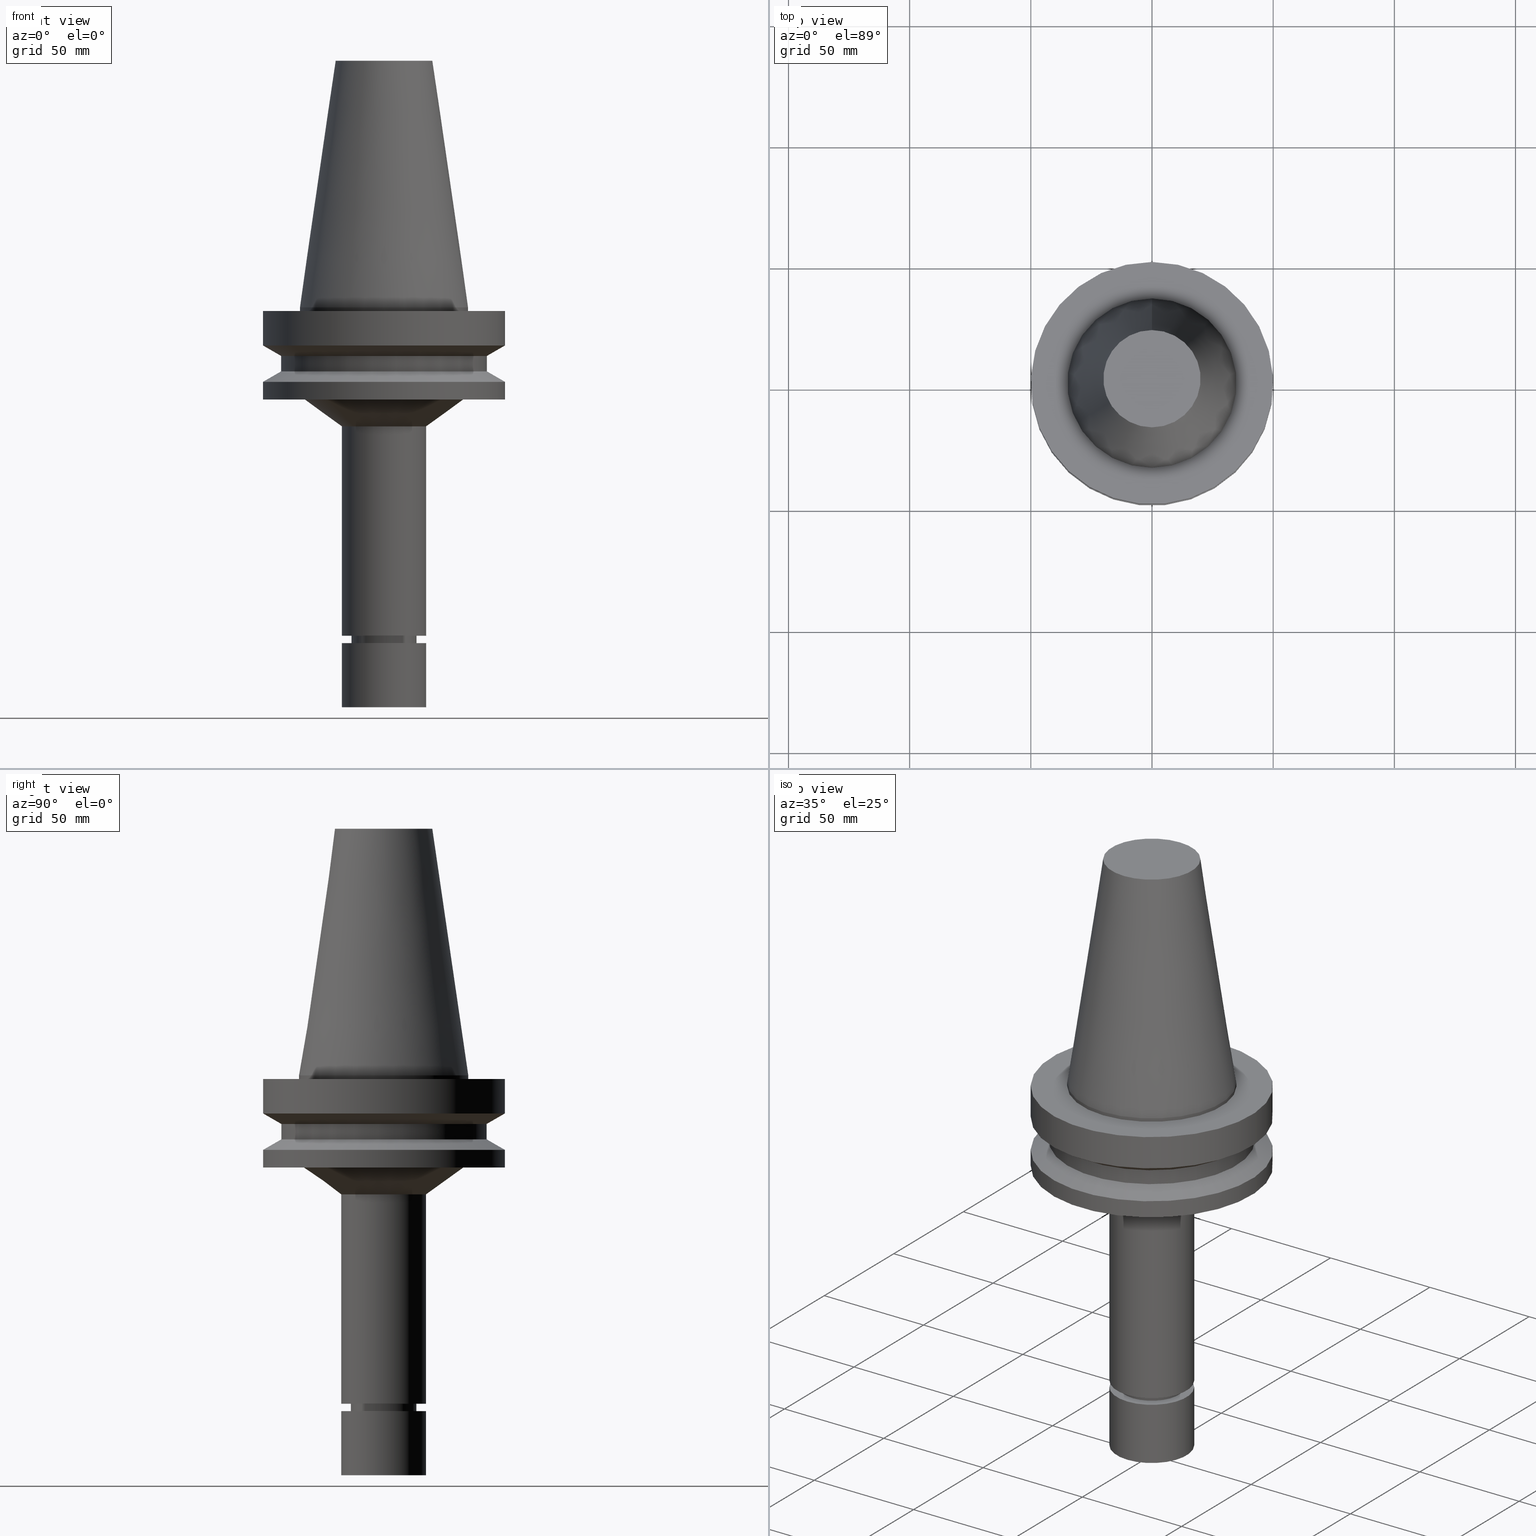
[diagram: canonical four-view strip — front | top / right | iso, engineering-drawing reading convention]
A machine part, canonical four-view strip (front | top / right | iso — engineering-drawing reading convention). The complete STEP part file that produces these views, byte-faithful:
ISO-10303-21;
HEADER;
FILE_DESCRIPTION((''),'1');
FILE_NAME('V:/90_\X2\53D65F9730C730FC30BF\X0\/00_\X2\6DE18DEF30C730FC30BF\X0\/ALL/BBT-BKUS\X2\FF76FF80FF9BFF78FF9E752852A05DE556F3\X0\201801/BBT50-MEGAER/BBT50-MEGAER20-165NL.stp','2018-02-02T08:02:47',(''),(''),'Spatial Interop R21 SP3','Kubotek KeyCreator 2011 V10.0.2 (22737)',' ');
FILE_SCHEMA(('automotive_design'));
ENDSEC;
DATA;
#1=MECHANICAL_DESIGN_GEOMETRIC_PRESENTATION_REPRESENTATION(' ',(#14,#15,#16,#17,#18,#19,#20,#21,#22,#23,#24,#25,#26,#27,#28,#29,#30,#31,#32,#33,#34,#35,#36,#37,#38,#39,#40,#41,#42,#43,#44,#45,#46,#47,#48,#49,#50,#51,#52,#53,#54,#55),#10);
#2=PRODUCT_DEFINITION_CONTEXT('',#56,'design');
#3=APPLICATION_PROTOCOL_DEFINITION('INTERNATIONAL STANDARD','automotive_design',1994,#56);
#4=PRODUCT_CATEGORY_RELATIONSHIP('NONE','NONE',#57,#58);
#5=SHAPE_DEFINITION_REPRESENTATION(#59,#60);
#6=PRODUCT_DEFINITION_CONTEXT('',#61,'design');
#7=APPLICATION_PROTOCOL_DEFINITION('INTERNATIONAL STANDARD','automotive_design',1994,#61);
#8=PRODUCT_CATEGORY_RELATIONSHIP('NONE','NONE',#62,#63);
#9=SHAPE_DEFINITION_REPRESENTATION(#64,#65);
#10= (GEOMETRIC_REPRESENTATION_CONTEXT(3)GLOBAL_UNCERTAINTY_ASSIGNED_CONTEXT((#68))GLOBAL_UNIT_ASSIGNED_CONTEXT((#70,#71,#72))REPRESENTATION_CONTEXT('NONE','WORKSPACE'));
#14=STYLED_ITEM('',(#74,#75),#76);
#15=STYLED_ITEM('',(#77,#78),#79);
#16=STYLED_ITEM('',(#80),#81);
#17=STYLED_ITEM('',(#82),#83);
#18=STYLED_ITEM('',(#84,#85),#86);
#19=STYLED_ITEM('',(#87,#88),#89);
#20=STYLED_ITEM('',(#90),#91);
#21=STYLED_ITEM('',(#92,#93),#94);
#22=STYLED_ITEM('',(#95),#96);
#23=STYLED_ITEM('',(#97),#98);
#24=STYLED_ITEM('',(#99,#100),#101);
#25=STYLED_ITEM('',(#102,#103),#104);
#26=STYLED_ITEM('',(#105),#106);
#27=STYLED_ITEM('',(#107,#108),#109);
#28=STYLED_ITEM('',(#110,#111),#112);
#29=STYLED_ITEM('',(#113),#114);
#30=STYLED_ITEM('',(#115),#116);
#31=STYLED_ITEM('',(#117),#118);
#32=STYLED_ITEM('',(#119),#120);
#33=STYLED_ITEM('',(#121,#122),#123);
#34=STYLED_ITEM('',(#124,#125),#126);
#35=STYLED_ITEM('',(#127,#128),#129);
#36=STYLED_ITEM('',(#130,#131),#132);
#37=STYLED_ITEM('',(#133),#134);
#38=STYLED_ITEM('',(#135),#136);
#39=STYLED_ITEM('',(#137),#138);
#40=STYLED_ITEM('',(#139),#140);
#41=STYLED_ITEM('',(#141,#142),#143);
#42=STYLED_ITEM('',(#144,#145),#146);
#43=STYLED_ITEM('',(#147),#148);
#44=STYLED_ITEM('',(#149,#150),#151);
#45=STYLED_ITEM('',(#152,#153),#154);
#46=STYLED_ITEM('',(#155,#156),#157);
#47=STYLED_ITEM('',(#158,#159),#160);
#48=STYLED_ITEM('',(#161,#162),#163);
#49=STYLED_ITEM('',(#164,#165),#166);
#50=STYLED_ITEM('',(#167),#168);
#51=STYLED_ITEM('',(#169),#170);
#52=STYLED_ITEM('',(#171,#172),#173);
#53=STYLED_ITEM('',(#174),#175);
#54=STYLED_ITEM('',(#176,#177),#178);
#55=STYLED_ITEM('',(#179),#180);
#56=APPLICATION_CONTEXT(' ');
#57=PRODUCT_CATEGORY('part','NONE');
#58=PRODUCT_RELATED_PRODUCT_CATEGORY('detail',' ',(#181));
#59=PRODUCT_DEFINITION_SHAPE('NONE','NONE',#182);
#60=ADVANCED_BREP_SHAPE_REPRESENTATION('Unnamed[1]',(#173,#183),#10);
#61=APPLICATION_CONTEXT(' ');
#62=PRODUCT_CATEGORY('part','NONE');
#63=PRODUCT_RELATED_PRODUCT_CATEGORY('detail',' ',(#184));
#64=PRODUCT_DEFINITION_SHAPE('NONE','NONE',#185);
#65=ADVANCED_BREP_SHAPE_REPRESENTATION('Unnamed[1]',(#101,#186),#10);
#68=UNCERTAINTY_MEASURE_WITH_UNIT(LENGTH_MEASURE(1.0E-006),#70,'','');
#70= (CONVERSION_BASED_UNIT('MILLIMETRE',#189)LENGTH_UNIT()NAMED_UNIT(#192));
#71= (NAMED_UNIT(#194)PLANE_ANGLE_UNIT()SI_UNIT($,.RADIAN.));
#72= (NAMED_UNIT(#194)SOLID_ANGLE_UNIT()SI_UNIT($,.STERADIAN.));
#74=PRESENTATION_STYLE_ASSIGNMENT((#200));
#75=PRESENTATION_STYLE_ASSIGNMENT((#201));
#76=ADVANCED_FACE('Unnamed[1]',(#202),#203,.T.);
#77=PRESENTATION_STYLE_ASSIGNMENT((#204));
#78=PRESENTATION_STYLE_ASSIGNMENT((#205));
#79=ADVANCED_FACE('Unnamed[1]',(#206,#207),#208,.T.);
#80=PRESENTATION_STYLE_ASSIGNMENT((#209));
#81=EDGE_CURVE('Unnamed[1]',#210,#210,#211,.T.);
#82=PRESENTATION_STYLE_ASSIGNMENT((#212));
#83=EDGE_CURVE('Unnamed[1]',#213,#213,#214,.T.);
#84=PRESENTATION_STYLE_ASSIGNMENT((#215));
#85=PRESENTATION_STYLE_ASSIGNMENT((#216));
#86=ADVANCED_FACE('Unnamed[1]',(#217,#218),#219,.T.);
#87=PRESENTATION_STYLE_ASSIGNMENT((#220));
#88=PRESENTATION_STYLE_ASSIGNMENT((#221));
#89=ADVANCED_FACE('Unnamed[1]',(#222,#223),#224,.T.);
#90=PRESENTATION_STYLE_ASSIGNMENT((#225));
#91=EDGE_CURVE('Unnamed[1]',#226,#226,#227,.T.);
#92=PRESENTATION_STYLE_ASSIGNMENT((#228));
#93=PRESENTATION_STYLE_ASSIGNMENT((#229));
#94=ADVANCED_FACE('Unnamed[1]',(#230,#231),#232,.T.);
#95=PRESENTATION_STYLE_ASSIGNMENT((#233));
#96=EDGE_CURVE('Unnamed[1]',#234,#234,#235,.T.);
#97=PRESENTATION_STYLE_ASSIGNMENT((#236));
#98=EDGE_CURVE('Unnamed[1]',#237,#237,#238,.T.);
#99=PRESENTATION_STYLE_ASSIGNMENT((#239));
#100=PRESENTATION_STYLE_ASSIGNMENT((#240));
#101=MANIFOLD_SOLID_BREP('Unnamed[1]',#241);
#102=PRESENTATION_STYLE_ASSIGNMENT((#242));
#103=PRESENTATION_STYLE_ASSIGNMENT((#243));
#104=ADVANCED_FACE('Unnamed[1]',(#244,#245),#246,.T.);
#105=PRESENTATION_STYLE_ASSIGNMENT((#247));
#106=EDGE_CURVE('Unnamed[1]',#248,#248,#249,.T.);
#107=PRESENTATION_STYLE_ASSIGNMENT((#250));
#108=PRESENTATION_STYLE_ASSIGNMENT((#251));
#109=ADVANCED_FACE('Unnamed[1]',(#252,#253),#254,.T.);
#110=PRESENTATION_STYLE_ASSIGNMENT((#255));
#111=PRESENTATION_STYLE_ASSIGNMENT((#256));
#112=ADVANCED_FACE('Unnamed[1]',(#257),#258,.T.);
#113=PRESENTATION_STYLE_ASSIGNMENT((#259));
#114=EDGE_CURVE('Unnamed[1]',#260,#260,#261,.T.);
#115=PRESENTATION_STYLE_ASSIGNMENT((#262));
#116=EDGE_CURVE('Unnamed[1]',#263,#263,#264,.T.);
#117=PRESENTATION_STYLE_ASSIGNMENT((#265));
#118=EDGE_CURVE('Unnamed[1]',#266,#266,#267,.T.);
#119=PRESENTATION_STYLE_ASSIGNMENT((#268));
#120=EDGE_CURVE('Unnamed[1]',#269,#269,#270,.T.);
#121=PRESENTATION_STYLE_ASSIGNMENT((#271));
#122=PRESENTATION_STYLE_ASSIGNMENT((#272));
#123=ADVANCED_FACE('Unnamed[1]',(#273,#274),#275,.T.);
#124=PRESENTATION_STYLE_ASSIGNMENT((#276));
#125=PRESENTATION_STYLE_ASSIGNMENT((#277));
#126=ADVANCED_FACE('Unnamed[1]',(#278,#279),#280,.T.);
#127=PRESENTATION_STYLE_ASSIGNMENT((#281));
#128=PRESENTATION_STYLE_ASSIGNMENT((#282));
#129=ADVANCED_FACE('Unnamed[1]',(#283,#284),#285,.T.);
#130=PRESENTATION_STYLE_ASSIGNMENT((#286));
#131=PRESENTATION_STYLE_ASSIGNMENT((#287));
#132=ADVANCED_FACE('Unnamed[1]',(#288),#289,.T.);
#133=PRESENTATION_STYLE_ASSIGNMENT((#290));
#134=EDGE_CURVE('Unnamed[1]',#291,#291,#292,.T.);
#135=PRESENTATION_STYLE_ASSIGNMENT((#293));
#136=EDGE_CURVE('Unnamed[1]',#294,#294,#295,.T.);
#137=PRESENTATION_STYLE_ASSIGNMENT((#296));
#138=EDGE_CURVE('Unnamed[1]',#297,#297,#298,.T.);
#139=PRESENTATION_STYLE_ASSIGNMENT((#299));
#140=EDGE_CURVE('Unnamed[1]',#300,#300,#301,.T.);
#141=PRESENTATION_STYLE_ASSIGNMENT((#302));
#142=PRESENTATION_STYLE_ASSIGNMENT((#303));
#143=ADVANCED_FACE('Unnamed[1]',(#304,#305),#306,.T.);
#144=PRESENTATION_STYLE_ASSIGNMENT((#307));
#145=PRESENTATION_STYLE_ASSIGNMENT((#308));
#146=ADVANCED_FACE('Unnamed[1]',(#309,#310),#311,.T.);
#147=PRESENTATION_STYLE_ASSIGNMENT((#312));
#148=EDGE_CURVE('Unnamed[1]',#313,#313,#314,.T.);
#149=PRESENTATION_STYLE_ASSIGNMENT((#315));
#150=PRESENTATION_STYLE_ASSIGNMENT((#316));
#151=ADVANCED_FACE('Unnamed[1]',(#317),#318,.T.);
#152=PRESENTATION_STYLE_ASSIGNMENT((#319));
#153=PRESENTATION_STYLE_ASSIGNMENT((#320));
#154=ADVANCED_FACE('Unnamed[1]',(#321,#322),#323,.T.);
#155=PRESENTATION_STYLE_ASSIGNMENT((#324));
#156=PRESENTATION_STYLE_ASSIGNMENT((#325));
#157=ADVANCED_FACE('Unnamed[1]',(#326,#327),#328,.T.);
#158=PRESENTATION_STYLE_ASSIGNMENT((#329));
#159=PRESENTATION_STYLE_ASSIGNMENT((#330));
#160=ADVANCED_FACE('Unnamed[1]',(#331,#332),#333,.T.);
#161=PRESENTATION_STYLE_ASSIGNMENT((#334));
#162=PRESENTATION_STYLE_ASSIGNMENT((#335));
#163=ADVANCED_FACE('Unnamed[1]',(#336,#337),#338,.T.);
#164=PRESENTATION_STYLE_ASSIGNMENT((#339));
#165=PRESENTATION_STYLE_ASSIGNMENT((#340));
#166=ADVANCED_FACE('Unnamed[1]',(#341,#342),#343,.T.);
#167=PRESENTATION_STYLE_ASSIGNMENT((#344));
#168=EDGE_CURVE('Unnamed[1]',#345,#345,#346,.T.);
#169=PRESENTATION_STYLE_ASSIGNMENT((#347));
#170=EDGE_CURVE('Unnamed[1]',#348,#348,#349,.T.);
#171=PRESENTATION_STYLE_ASSIGNMENT((#350));
#172=PRESENTATION_STYLE_ASSIGNMENT((#351));
#173=MANIFOLD_SOLID_BREP('Unnamed[1]',#352);
#174=PRESENTATION_STYLE_ASSIGNMENT((#353));
#175=EDGE_CURVE('Unnamed[1]',#354,#354,#355,.T.);
#176=PRESENTATION_STYLE_ASSIGNMENT((#356));
#177=PRESENTATION_STYLE_ASSIGNMENT((#357));
#178=ADVANCED_FACE('Unnamed[1]',(#358,#359),#360,.T.);
#179=PRESENTATION_STYLE_ASSIGNMENT((#361));
#180=EDGE_CURVE('Unnamed[1]',#362,#362,#363,.T.);
#181=PRODUCT('Unnamed[1]','Unnamed[1]','PART-Unnamed[1]-DESC',(#364));
#182=PRODUCT_DEFINITION('NONE','NONE',#365,#2);
#183=AXIS2_PLACEMENT_3D('',#366,#367,#368);
#184=PRODUCT('Unnamed[1]','Unnamed[1]','PART-Unnamed[1]-DESC',(#369));
#185=PRODUCT_DEFINITION('NONE','NONE',#370,#6);
#186=AXIS2_PLACEMENT_3D('',#371,#372,#373);
#189=LENGTH_MEASURE_WITH_UNIT(LENGTH_MEASURE(1.0),#374);
#192=DIMENSIONAL_EXPONENTS(1.0,0.0,0.0,0.0,0.0,0.0,0.0);
#194=DIMENSIONAL_EXPONENTS(0.0,0.0,0.0,0.0,0.0,0.0,0.0);
#200=SURFACE_STYLE_USAGE(.BOTH.,#375);
#201=CURVE_STYLE('',#376,POSITIVE_LENGTH_MEASURE(1000.0),#377);
#202=FACE_OUTER_BOUND('',#378,.T.);
#203=PLANE('',#379);
#204=SURFACE_STYLE_USAGE(.BOTH.,#380);
#205=CURVE_STYLE('',#381,POSITIVE_LENGTH_MEASURE(1000.0),#382);
#206=FACE_BOUND('',#383,.T.);
#207=FACE_BOUND('',#384,.T.);
#208=CYLINDRICAL_SURFACE('',#385,12.4999999999999);
#209=CURVE_STYLE('',#386,POSITIVE_LENGTH_MEASURE(1000.0),#387);
#210=VERTEX_POINT('',#388);
#211=CIRCLE('',#389,50.0);
#212=CURVE_STYLE('',#390,POSITIVE_LENGTH_MEASURE(1000.0),#391);
#213=VERTEX_POINT('',#392);
#214=CIRCLE('',#393,50.0);
#215=SURFACE_STYLE_USAGE(.BOTH.,#394);
#216=CURVE_STYLE('',#395,POSITIVE_LENGTH_MEASURE(1000.0),#396);
#217=FACE_BOUND('',#397,.T.);
#218=FACE_BOUND('',#398,.T.);
#219=CYLINDRICAL_SURFACE('',#399,34.925);
#220=SURFACE_STYLE_USAGE(.BOTH.,#400);
#221=CURVE_STYLE('',#401,POSITIVE_LENGTH_MEASURE(1000.0),#402);
#222=FACE_BOUND('',#403,.T.);
#223=FACE_BOUND('',#404,.T.);
#224=CONICAL_SURFACE('',#405,11.9499999999987,0.523598775598666);
#225=CURVE_STYLE('',#406,POSITIVE_LENGTH_MEASURE(1000.0),#407);
#226=VERTEX_POINT('',#408);
#227=CIRCLE('',#409,17.5);
#228=SURFACE_STYLE_USAGE(.BOTH.,#410);
#229=CURVE_STYLE('',#411,POSITIVE_LENGTH_MEASURE(1000.0),#412);
#230=FACE_BOUND('',#413,.T.);
#231=FACE_BOUND('',#414,.T.);
#232=CONICAL_SURFACE('',#415,27.5020833325942,0.144812498253157);
#233=CURVE_STYLE('',#416,POSITIVE_LENGTH_MEASURE(1000.0),#417);
#234=VERTEX_POINT('',#418);
#235=CIRCLE('',#419,42.5);
#236=CURVE_STYLE('',#420,POSITIVE_LENGTH_MEASURE(1000.0),#421);
#237=VERTEX_POINT('',#422);
#238=CIRCLE('',#423,17.5000000000006);
#239=SURFACE_STYLE_USAGE(.BOTH.,#424);
#240=CURVE_STYLE('',#425,POSITIVE_LENGTH_MEASURE(1000.0),#426);
#241=CLOSED_SHELL('',(#112,#151,#143));
#242=SURFACE_STYLE_USAGE(.BOTH.,#427);
#243=CURVE_STYLE('',#428,POSITIVE_LENGTH_MEASURE(1000.0),#429);
#244=FACE_BOUND('',#430,.T.);
#245=FACE_BOUND('',#431,.T.);
#246=CONICAL_SURFACE('',#432,13.0000000000002,1.0471975511948);
#247=CURVE_STYLE('',#433,POSITIVE_LENGTH_MEASURE(1000.0),#434);
#248=VERTEX_POINT('',#435);
#249=CIRCLE('',#436,20.0791666651884);
#250=SURFACE_STYLE_USAGE(.BOTH.,#437);
#251=CURVE_STYLE('',#438,POSITIVE_LENGTH_MEASURE(1000.0),#439);
#252=FACE_BOUND('',#440,.T.);
#253=FACE_BOUND('',#441,.T.);
#254=CYLINDRICAL_SURFACE('',#442,17.4999999999996);
#255=SURFACE_STYLE_USAGE(.BOTH.,#443);
#256=CURVE_STYLE('',#444,POSITIVE_LENGTH_MEASURE(1000.0),#445);
#257=FACE_OUTER_BOUND('',#446,.T.);
#258=PLANE('',#447);
#259=CURVE_STYLE('',#448,POSITIVE_LENGTH_MEASURE(1000.0),#449);
#260=VERTEX_POINT('',#450);
#261=CIRCLE('',#451,50.0);
#262=CURVE_STYLE('',#452,POSITIVE_LENGTH_MEASURE(1000.0),#453);
#263=VERTEX_POINT('',#454);
#264=CIRCLE('',#455,12.4999999999998);
#265=CURVE_STYLE('',#456,POSITIVE_LENGTH_MEASURE(1000.0),#457);
#266=VERTEX_POINT('',#458);
#267=CIRCLE('',#459,42.5);
#268=CURVE_STYLE('',#460,POSITIVE_LENGTH_MEASURE(1000.0),#461);
#269=VERTEX_POINT('',#462);
#270=CIRCLE('',#463,17.4999999999986);
#271=SURFACE_STYLE_USAGE(.BOTH.,#464);
#272=CURVE_STYLE('',#465,POSITIVE_LENGTH_MEASURE(1000.0),#466);
#273=FACE_OUTER_BOUND('',#467,.T.);
#274=FACE_BOUND('',#468,.T.);
#275=PLANE('',#469);
#276=SURFACE_STYLE_USAGE(.BOTH.,#470);
#277=CURVE_STYLE('',#471,POSITIVE_LENGTH_MEASURE(1000.0),#472);
#278=FACE_BOUND('',#473,.T.);
#279=FACE_BOUND('',#474,.T.);
#280=CYLINDRICAL_SURFACE('',#475,42.5);
#281=SURFACE_STYLE_USAGE(.BOTH.,#476);
#282=CURVE_STYLE('',#477,POSITIVE_LENGTH_MEASURE(1000.0),#478);
#283=FACE_BOUND('',#479,.T.);
#284=FACE_BOUND('',#480,.T.);
#285=CONICAL_SURFACE('',#481,46.25,1.04719755108882);
#286=SURFACE_STYLE_USAGE(.BOTH.,#482);
#287=CURVE_STYLE('',#483,POSITIVE_LENGTH_MEASURE(1000.0),#484);
#288=FACE_OUTER_BOUND('',#485,.T.);
#289=PLANE('',#486);
#290=CURVE_STYLE('',#487,POSITIVE_LENGTH_MEASURE(1000.0),#488);
#291=VERTEX_POINT('',#489);
#292=CIRCLE('',#490,32.8637797684183);
#293=CURVE_STYLE('',#491,POSITIVE_LENGTH_MEASURE(1000.0),#492);
#294=VERTEX_POINT('',#493);
#295=CIRCLE('',#494,34.925);
#296=CURVE_STYLE('',#495,POSITIVE_LENGTH_MEASURE(1000.0),#496);
#297=VERTEX_POINT('',#497);
#298=CIRCLE('',#498,12.4999999999999);
#299=CURVE_STYLE('',#499,POSITIVE_LENGTH_MEASURE(1000.0),#500);
#300=VERTEX_POINT('',#501);
#301=CIRCLE('',#502,11.3999999999977);
#302=SURFACE_STYLE_USAGE(.BOTH.,#503);
#303=CURVE_STYLE('',#504,POSITIVE_LENGTH_MEASURE(1000.0),#505);
#304=FACE_BOUND('',#506,.T.);
#305=FACE_BOUND('',#507,.T.);
#306=CYLINDRICAL_SURFACE('',#508,17.5);
#307=SURFACE_STYLE_USAGE(.BOTH.,#509);
#308=CURVE_STYLE('',#510,POSITIVE_LENGTH_MEASURE(1000.0),#511);
#309=FACE_BOUND('',#512,.T.);
#310=FACE_BOUND('',#513,.T.);
#311=CONICAL_SURFACE('',#514,25.1818898842094,0.946630035979765);
#312=CURVE_STYLE('',#515,POSITIVE_LENGTH_MEASURE(1000.0),#516);
#313=VERTEX_POINT('',#517);
#314=CIRCLE('',#518,34.925);
#315=SURFACE_STYLE_USAGE(.BOTH.,#519);
#316=CURVE_STYLE('',#520,POSITIVE_LENGTH_MEASURE(1000.0),#521);
#317=FACE_OUTER_BOUND('',#522,.T.);
#318=PLANE('',#523);
#319=SURFACE_STYLE_USAGE(.BOTH.,#524);
#320=CURVE_STYLE('',#525,POSITIVE_LENGTH_MEASURE(1000.0),#526);
#321=FACE_BOUND('',#527,.T.);
#322=FACE_OUTER_BOUND('',#528,.T.);
#323=PLANE('',#529);
#324=SURFACE_STYLE_USAGE(.BOTH.,#530);
#325=CURVE_STYLE('',#531,POSITIVE_LENGTH_MEASURE(1000.0),#532);
#326=FACE_BOUND('',#533,.T.);
#327=FACE_BOUND('',#534,.T.);
#328=CYLINDRICAL_SURFACE('',#535,13.4999999999956);
#329=SURFACE_STYLE_USAGE(.BOTH.,#536);
#330=CURVE_STYLE('',#537,POSITIVE_LENGTH_MEASURE(1000.0),#538);
#331=FACE_OUTER_BOUND('',#539,.T.);
#332=FACE_BOUND('',#540,.T.);
#333=PLANE('',#541);
#334=SURFACE_STYLE_USAGE(.BOTH.,#542);
#335=CURVE_STYLE('',#543,POSITIVE_LENGTH_MEASURE(1000.0),#544);
#336=FACE_BOUND('',#545,.T.);
#337=FACE_BOUND('',#546,.T.);
#338=CYLINDRICAL_SURFACE('',#547,50.0);
#339=SURFACE_STYLE_USAGE(.BOTH.,#548);
#340=CURVE_STYLE('',#549,POSITIVE_LENGTH_MEASURE(1000.0),#550);
#341=FACE_BOUND('',#551,.T.);
#342=FACE_BOUND('',#552,.T.);
#343=CONICAL_SURFACE('',#553,46.25,1.04719755108882);
#344=CURVE_STYLE('',#554,POSITIVE_LENGTH_MEASURE(1000.0),#555);
#345=VERTEX_POINT('',#556);
#346=CIRCLE('',#557,13.4999999999908);
#347=CURVE_STYLE('',#558,POSITIVE_LENGTH_MEASURE(1000.0),#559);
#348=VERTEX_POINT('',#560);
#349=CIRCLE('',#561,50.0);
#350=SURFACE_STYLE_USAGE(.BOTH.,#562);
#351=CURVE_STYLE('',#563,POSITIVE_LENGTH_MEASURE(1000.0),#564);
#352=CLOSED_SHELL('',(#76,#89,#79,#104,#157,#123,#109,#146,#160,#163,#129,#126,#166,#178,#154,#86,#94,#132));
#353=CURVE_STYLE('',#565,POSITIVE_LENGTH_MEASURE(1000.0),#566);
#354=VERTEX_POINT('',#567);
#355=CIRCLE('',#568,17.5);
#356=SURFACE_STYLE_USAGE(.BOTH.,#569);
#357=CURVE_STYLE('',#570,POSITIVE_LENGTH_MEASURE(1000.0),#571);
#358=FACE_BOUND('',#572,.T.);
#359=FACE_BOUND('',#573,.T.);
#360=CYLINDRICAL_SURFACE('',#574,50.0);
#361=CURVE_STYLE('',#575,POSITIVE_LENGTH_MEASURE(1000.0),#576);
#362=VERTEX_POINT('',#577);
#363=CIRCLE('',#578,13.5000000000005);
#364=PRODUCT_CONTEXT('',#56,'mechanical');
#365=PRODUCT_DEFINITION_FORMATION_WITH_SPECIFIED_SOURCE(' ','NONE',#181,.NOT_KNOWN.);
#366=CARTESIAN_POINT('',(0.0,0.0,0.0));
#367=DIRECTION('',(0.0,0.0,1.0));
#368=DIRECTION('',(1.0,0.0,0.0));
#369=PRODUCT_CONTEXT('',#61,'mechanical');
#370=PRODUCT_DEFINITION_FORMATION_WITH_SPECIFIED_SOURCE(' ','NONE',#184,.NOT_KNOWN.);
#371=CARTESIAN_POINT('',(0.0,0.0,0.0));
#372=DIRECTION('',(0.0,0.0,1.0));
#373=DIRECTION('',(1.0,0.0,0.0));
#374= (NAMED_UNIT(#192)LENGTH_UNIT()SI_UNIT(.MILLI.,.METRE.));
#375=SURFACE_SIDE_STYLE('',(#580));
#376=DRAUGHTING_PRE_DEFINED_CURVE_FONT('continuous');
#377=COLOUR_RGB('',0.0,1.0,0.0);
#378=EDGE_LOOP('',(#581));
#379=AXIS2_PLACEMENT_3D('',#582,#583,#584);
#380=SURFACE_SIDE_STYLE('',(#585));
#381=DRAUGHTING_PRE_DEFINED_CURVE_FONT('continuous');
#382=COLOUR_RGB('',0.0,1.0,0.0);
#383=EDGE_LOOP('',(#586));
#384=EDGE_LOOP('',(#587));
#385=AXIS2_PLACEMENT_3D('',#588,#589,#590);
#386=DRAUGHTING_PRE_DEFINED_CURVE_FONT('continuous');
#387=COLOUR_RGB('',0.0,1.0,0.0);
#388=CARTESIAN_POINT('',(9.18485099360509E-017,50.0,-1.49999999999999));
#389=AXIS2_PLACEMENT_3D('',#591,#592,#593);
#390=DRAUGHTING_PRE_DEFINED_CURVE_FONT('continuous');
#391=COLOUR_RGB('',0.0,1.0,0.0);
#392=CARTESIAN_POINT('',(1.87983283669119E-015,50.0,-30.7000000000001));
#393=AXIS2_PLACEMENT_3D('',#594,#595,#596);
#394=SURFACE_SIDE_STYLE('',(#597));
#395=DRAUGHTING_PRE_DEFINED_CURVE_FONT('continuous');
#396=COLOUR_RGB('',0.0,1.0,0.0);
#397=EDGE_LOOP('',(#598));
#398=EDGE_LOOP('',(#599));
#399=AXIS2_PLACEMENT_3D('',#600,#601,#602);
#400=SURFACE_SIDE_STYLE('',(#603));
#401=DRAUGHTING_PRE_DEFINED_CURVE_FONT('continuous');
#402=COLOUR_RGB('',0.0,1.0,0.0);
#403=EDGE_LOOP('',(#604));
#404=EDGE_LOOP('',(#605));
#405=AXIS2_PLACEMENT_3D('',#606,#607,#608);
#406=DRAUGHTING_PRE_DEFINED_CURVE_FONT('continuous');
#407=COLOUR_RGB('',0.0,1.0,0.0);
#408=CARTESIAN_POINT('',(1.01033360929657E-014,17.5,-165.0));
#409=AXIS2_PLACEMENT_3D('',#609,#610,#611);
#410=SURFACE_SIDE_STYLE('',(#612));
#411=DRAUGHTING_PRE_DEFINED_CURVE_FONT('continuous');
#412=COLOUR_RGB('',0.0,1.0,0.0);
#413=EDGE_LOOP('',(#613));
#414=EDGE_LOOP('',(#614));
#415=AXIS2_PLACEMENT_3D('',#615,#616,#617);
#416=DRAUGHTING_PRE_DEFINED_CURVE_FONT('continuous');
#417=COLOUR_RGB('',0.0,1.0,0.0);
#418=CARTESIAN_POINT('',(1.61468902694397E-015,42.5,-26.3698729800001));
#419=AXIS2_PLACEMENT_3D('',#618,#619,#620);
#420=DRAUGHTING_PRE_DEFINED_CURVE_FONT('continuous');
#421=COLOUR_RGB('',0.0,1.0,0.0);
#422=CARTESIAN_POINT('',(3.00438088139649E-015,17.5000000000006,-49.0652632822501));
#423=AXIS2_PLACEMENT_3D('',#621,#622,#623);
#424=SURFACE_SIDE_STYLE('',(#624));
#425=DRAUGHTING_PRE_DEFINED_CURVE_FONT('continuous');
#426=COLOUR_RGB('',0.0,1.0,0.0);
#427=SURFACE_SIDE_STYLE('',(#625));
#428=DRAUGHTING_PRE_DEFINED_CURVE_FONT('continuous');
#429=COLOUR_RGB('',0.0,1.0,0.0);
#430=EDGE_LOOP('',(#626));
#431=EDGE_LOOP('',(#627));
#432=AXIS2_PLACEMENT_3D('',#628,#629,#630);
#433=DRAUGHTING_PRE_DEFINED_CURVE_FONT('continuous');
#434=COLOUR_RGB('',0.0,1.0,0.0);
#435=CARTESIAN_POINT('',(-6.23345220766003E-015,20.0791666651884,101.8));
#436=AXIS2_PLACEMENT_3D('',#631,#632,#633);
#437=SURFACE_SIDE_STYLE('',(#634));
#438=DRAUGHTING_PRE_DEFINED_CURVE_FONT('continuous');
#439=COLOUR_RGB('',0.0,1.0,0.0);
#440=EDGE_LOOP('',(#635));
#441=EDGE_LOOP('',(#636));
#442=AXIS2_PLACEMENT_3D('',#637,#638,#639);
#443=SURFACE_SIDE_STYLE('',(#640));
#444=DRAUGHTING_PRE_DEFINED_CURVE_FONT('continuous');
#445=COLOUR_RGB('',0.0,1.0,0.0);
#446=EDGE_LOOP('',(#641));
#447=AXIS2_PLACEMENT_3D('',#642,#643,#644);
#448=DRAUGHTING_PRE_DEFINED_CURVE_FONT('continuous');
#449=COLOUR_RGB('',0.0,1.0,0.0);
#450=CARTESIAN_POINT('',(2.32682891837996E-015,50.0,-37.9999999999998));
#451=AXIS2_PLACEMENT_3D('',#645,#646,#647);
#452=DRAUGHTING_PRE_DEFINED_CURVE_FONT('continuous');
#453=COLOUR_RGB('',0.0,1.0,0.0);
#454=CARTESIAN_POINT('',(9.38659588512361E-015,12.4999999999998,-153.294744111672));
#455=AXIS2_PLACEMENT_3D('',#648,#649,#650);
#456=DRAUGHTING_PRE_DEFINED_CURVE_FONT('continuous');
#457=COLOUR_RGB('',0.0,1.0,0.0);
#458=CARTESIAN_POINT('',(1.2264915470779E-015,42.5,-20.03012702));
#459=AXIS2_PLACEMENT_3D('',#651,#652,#653);
#460=DRAUGHTING_PRE_DEFINED_CURVE_FONT('continuous');
#461=COLOUR_RGB('',0.0,1.0,0.0);
#462=CARTESIAN_POINT('',(8.29698206422331E-015,17.4999999999986,-135.5));
#463=AXIS2_PLACEMENT_3D('',#654,#655,#656);
#464=SURFACE_SIDE_STYLE('',(#657));
#465=DRAUGHTING_PRE_DEFINED_CURVE_FONT('continuous');
#466=COLOUR_RGB('',0.0,1.0,0.0);
#467=EDGE_LOOP('',(#658));
#468=EDGE_LOOP('',(#659));
#469=AXIS2_PLACEMENT_3D('',#660,#661,#662);
#470=SURFACE_SIDE_STYLE('',(#663));
#471=DRAUGHTING_PRE_DEFINED_CURVE_FONT('continuous');
#472=COLOUR_RGB('',0.0,1.0,0.0);
#473=EDGE_LOOP('',(#664));
#474=EDGE_LOOP('',(#665));
#475=AXIS2_PLACEMENT_3D('',#666,#667,#668);
#476=SURFACE_SIDE_STYLE('',(#669));
#477=DRAUGHTING_PRE_DEFINED_CURVE_FONT('continuous');
#478=COLOUR_RGB('',0.0,1.0,0.0);
#479=EDGE_LOOP('',(#670));
#480=EDGE_LOOP('',(#671));
#481=AXIS2_PLACEMENT_3D('',#672,#673,#674);
#482=SURFACE_SIDE_STYLE('',(#675));
#483=DRAUGHTING_PRE_DEFINED_CURVE_FONT('continuous');
#484=COLOUR_RGB('',0.0,1.0,0.0);
#485=EDGE_LOOP('',(#676));
#486=AXIS2_PLACEMENT_3D('',#677,#678,#679);
#487=DRAUGHTING_PRE_DEFINED_CURVE_FONT('continuous');
#488=COLOUR_RGB('',0.0,1.0,0.0);
#489=CARTESIAN_POINT('',(2.32682891837996E-015,32.8637797684183,-37.9999999999998));
#490=AXIS2_PLACEMENT_3D('',#680,#681,#682);
#491=DRAUGHTING_PRE_DEFINED_CURVE_FONT('continuous');
#492=COLOUR_RGB('',0.0,1.0,0.0);
#493=CARTESIAN_POINT('',(-4.30483861169435E-031,34.925,4.27707894602213E-015));
#494=AXIS2_PLACEMENT_3D('',#683,#684,#685);
#495=DRAUGHTING_PRE_DEFINED_CURVE_FONT('continuous');
#496=COLOUR_RGB('',0.0,1.0,0.0);
#497=CARTESIAN_POINT('',(8.6888491476817E-015,12.4999999999999,-141.899675134597));
#498=AXIS2_PLACEMENT_3D('',#686,#687,#688);
#499=DRAUGHTING_PRE_DEFINED_CURVE_FONT('continuous');
#500=COLOUR_RGB('',0.0,1.0,0.0);
#501=CARTESIAN_POINT('',(9.50325916138347E-015,11.3999999999977,-155.2));
#502=AXIS2_PLACEMENT_3D('',#689,#690,#691);
#503=SURFACE_SIDE_STYLE('',(#692));
#504=DRAUGHTING_PRE_DEFINED_CURVE_FONT('continuous');
#505=COLOUR_RGB('',0.0,1.0,0.0);
#506=EDGE_LOOP('',(#693));
#507=EDGE_LOOP('',(#694));
#508=AXIS2_PLACEMENT_3D('',#695,#696,#697);
#509=SURFACE_SIDE_STYLE('',(#698));
#510=DRAUGHTING_PRE_DEFINED_CURVE_FONT('continuous');
#511=COLOUR_RGB('',0.0,1.0,0.0);
#512=EDGE_LOOP('',(#699));
#513=EDGE_LOOP('',(#700));
#514=AXIS2_PLACEMENT_3D('',#701,#702,#703);
#515=DRAUGHTING_PRE_DEFINED_CURVE_FONT('continuous');
#516=COLOUR_RGB('',0.0,1.0,0.0);
#517=CARTESIAN_POINT('',(9.18485099360511E-017,34.925,-1.5));
#518=AXIS2_PLACEMENT_3D('',#704,#705,#706);
#519=SURFACE_SIDE_STYLE('',(#707));
#520=DRAUGHTING_PRE_DEFINED_CURVE_FONT('continuous');
#521=COLOUR_RGB('',0.0,1.0,0.0);
#522=EDGE_LOOP('',(#708));
#523=AXIS2_PLACEMENT_3D('',#709,#710,#711);
#524=SURFACE_SIDE_STYLE('',(#712));
#525=DRAUGHTING_PRE_DEFINED_CURVE_FONT('continuous');
#526=COLOUR_RGB('',0.0,1.0,0.0);
#527=EDGE_LOOP('',(#713));
#528=EDGE_LOOP('',(#714));
#529=AXIS2_PLACEMENT_3D('',#715,#716,#717);
#530=SURFACE_SIDE_STYLE('',(#718));
#531=DRAUGHTING_PRE_DEFINED_CURVE_FONT('continuous');
#532=COLOUR_RGB('',0.0,1.0,0.0);
#533=EDGE_LOOP('',(#719));
#534=EDGE_LOOP('',(#720));
#535=AXIS2_PLACEMENT_3D('',#721,#722,#723);
#536=SURFACE_SIDE_STYLE('',(#724));
#537=DRAUGHTING_PRE_DEFINED_CURVE_FONT('continuous');
#538=COLOUR_RGB('',0.0,1.0,0.0);
#539=EDGE_LOOP('',(#725));
#540=EDGE_LOOP('',(#726));
#541=AXIS2_PLACEMENT_3D('',#727,#728,#729);
#542=SURFACE_SIDE_STYLE('',(#730));
#543=DRAUGHTING_PRE_DEFINED_CURVE_FONT('continuous');
#544=COLOUR_RGB('',0.0,1.0,0.0);
#545=EDGE_LOOP('',(#731));
#546=EDGE_LOOP('',(#732));
#547=AXIS2_PLACEMENT_3D('',#733,#734,#735);
#548=SURFACE_SIDE_STYLE('',(#736));
#549=DRAUGHTING_PRE_DEFINED_CURVE_FONT('continuous');
#550=COLOUR_RGB('',0.0,1.0,0.0);
#551=EDGE_LOOP('',(#737));
#552=EDGE_LOOP('',(#738));
#553=AXIS2_PLACEMENT_3D('',#739,#740,#741);
#554=DRAUGHTING_PRE_DEFINED_CURVE_FONT('continuous');
#555=COLOUR_RGB('',0.0,1.0,0.0);
#556=CARTESIAN_POINT('',(8.29698206422329E-015,13.4999999999908,-135.499999999999));
#557=AXIS2_PLACEMENT_3D('',#742,#743,#744);
#558=DRAUGHTING_PRE_DEFINED_CURVE_FONT('continuous');
#559=COLOUR_RGB('',0.0,1.0,0.0);
#560=CARTESIAN_POINT('',(9.61347737330674E-016,50.0,-15.7));
#561=AXIS2_PLACEMENT_3D('',#745,#746,#747);
#562=SURFACE_SIDE_STYLE('',(#748));
#563=DRAUGHTING_PRE_DEFINED_CURVE_FONT('continuous');
#564=COLOUR_RGB('',0.0,1.0,0.0);
#565=DRAUGHTING_PRE_DEFINED_CURVE_FONT('continuous');
#566=COLOUR_RGB('',0.0,1.0,0.0);
#567=CARTESIAN_POINT('',(8.48068001842678E-015,17.5,-138.500015258789));
#568=AXIS2_PLACEMENT_3D('',#749,#750,#751);
#569=SURFACE_SIDE_STYLE('',(#752));
#570=DRAUGHTING_PRE_DEFINED_CURVE_FONT('continuous');
#571=COLOUR_RGB('',0.0,1.0,0.0);
#572=EDGE_LOOP('',(#753));
#573=EDGE_LOOP('',(#754));
#574=AXIS2_PLACEMENT_3D('',#755,#756,#757);
#575=DRAUGHTING_PRE_DEFINED_CURVE_FONT('continuous');
#576=COLOUR_RGB('',0.0,1.0,0.0);
#577=CARTESIAN_POINT('',(8.65349663972404E-015,13.5000000000005,-141.322324865405));
#578=AXIS2_PLACEMENT_3D('',#758,#759,#760);
#580=SURFACE_STYLE_FILL_AREA(#761);
#581=ORIENTED_EDGE('',*,*,#140,.F.);
#582=CARTESIAN_POINT('',(9.50325916138347E-015,5.69999999999887,-155.2));
#583=DIRECTION('',(6.12323399573677E-017,-1.73294621633193E-014,-1.0));
#584=DIRECTION('',(-1.05629636573194E-030,-1.0,1.73294621633193E-014));
#585=SURFACE_STYLE_FILL_AREA(#762);
#586=ORIENTED_EDGE('',*,*,#138,.F.);
#587=ORIENTED_EDGE('',*,*,#116,.T.);
#588=CARTESIAN_POINT('',(9.03772251640266E-015,1.98280917353639E-014,-147.597209623135));
#589=DIRECTION('',(-6.12323399573677E-017,-2.72265846766674E-017,1.0));
#590=DIRECTION('',(-6.49430021956864E-033,1.0,2.72265846766674E-017));
#591=CARTESIAN_POINT('',(9.18485099360515E-017,1.58503636865388E-014,-1.5));
#592=DIRECTION('',(-6.12323399573677E-017,-2.72265846766671E-017,1.0));
#593=DIRECTION('',(-6.49430021956856E-033,1.0,2.72265846766671E-017));
#594=CARTESIAN_POINT('',(1.87983283669119E-015,1.66453799590967E-014,-30.7));
#595=DIRECTION('',(-6.12323399573677E-017,-2.72265846766671E-017,1.0));
#596=DIRECTION('',(-6.49430021956856E-033,1.0,2.72265846766671E-017));
#597=SURFACE_STYLE_FILL_AREA(#763);
#598=ORIENTED_EDGE('',*,*,#136,.F.);
#599=ORIENTED_EDGE('',*,*,#148,.T.);
#600=CARTESIAN_POINT('',(4.59242549680257E-017,1.58299437480313E-014,-0.75));
#601=DIRECTION('',(-6.12323399573677E-017,-2.72265846766536E-017,1.0));
#602=DIRECTION('',(-6.4943002195703E-033,1.0,2.72265846766536E-017));
#603=SURFACE_STYLE_FILL_AREA(#764);
#604=ORIENTED_EDGE('',*,*,#116,.F.);
#605=ORIENTED_EDGE('',*,*,#140,.T.);
#606=CARTESIAN_POINT('',(9.44492752325354E-015,2.00091529459512E-014,-154.247372055836));
#607=DIRECTION('',(-6.12323399573677E-017,-2.72265846766248E-017,1.0));
#608=DIRECTION('',(-6.49430021956042E-033,1.0,2.72265846766248E-017));
#609=CARTESIAN_POINT('',(1.01033360929657E-014,2.03019102811694E-014,-165.0));
#610=DIRECTION('',(6.12323399573677E-017,2.722658467664E-017,-1.0));
#611=DIRECTION('',(-6.4943002195671E-033,1.0,2.722658467664E-017));
#612=SURFACE_STYLE_FILL_AREA(#765);
#613=ORIENTED_EDGE('',*,*,#106,.F.);
#614=ORIENTED_EDGE('',*,*,#136,.T.);
#615=CARTESIAN_POINT('',(-3.11672610383001E-015,1.44236906494828E-014,50.9));
#616=DIRECTION('',(6.12323399573677E-017,2.72265846766601E-017,-1.0));
#617=DIRECTION('',(-6.49430021957166E-033,1.0,2.72265846766601E-017));
#618=CARTESIAN_POINT('',(1.61468902694397E-015,1.6527485389126E-014,-26.3698729800001));
#619=DIRECTION('',(-6.12323399573677E-017,-2.72265846766253E-017,1.0));
#620=DIRECTION('',(-6.4943002195635E-033,1.0,2.72265846766253E-017));
#621=CARTESIAN_POINT('',(3.00438088139649E-015,1.71454033549596E-014,-49.0652632822501));
#622=DIRECTION('',(-6.12323399573676E-017,-2.7226584676657E-017,1.0));
#623=DIRECTION('',(-6.4943002195663E-033,1.0,2.7226584676657E-017));
#624=SURFACE_STYLE_FILL_AREA(#766);
#625=SURFACE_STYLE_FILL_AREA(#767);
#626=ORIENTED_EDGE('',*,*,#180,.F.);
#627=ORIENTED_EDGE('',*,*,#138,.T.);
#628=CARTESIAN_POINT('',(8.67117289370287E-015,1.96651076921675E-014,-141.611000000001));
#629=DIRECTION('',(-6.12323399573677E-017,-2.72265846765971E-017,1.0));
#630=DIRECTION('',(-6.49430021955577E-033,1.0,2.72265846765971E-017));
#631=CARTESIAN_POINT('',(-6.23345220766003E-015,1.30378574894418E-014,101.8));
#632=DIRECTION('',(-6.12323399573677E-017,-2.72265846766713E-017,1.0));
#633=DIRECTION('',(-6.49430021956955E-033,1.0,2.72265846766713E-017));
#634=SURFACE_STYLE_FILL_AREA(#768);
#635=ORIENTED_EDGE('',*,*,#98,.F.);
#636=ORIENTED_EDGE('',*,*,#120,.T.);
#637=CARTESIAN_POINT('',(5.6506814728099E-015,1.83220646940841E-014,-92.282631641125));
#638=DIRECTION('',(-6.12323399573677E-017,-2.72265846766585E-017,1.0));
#639=DIRECTION('',(-6.49430021956667E-033,1.0,2.72265846766585E-017));
#640=SURFACE_STYLE_FILL_AREA(#769);
#641=ORIENTED_EDGE('',*,*,#91,.T.);
#642=CARTESIAN_POINT('',(1.01033360929657E-014,8.75000000000002,-165.0));
#643=DIRECTION('',(6.12323399573677E-017,1.22464679914735E-016,-1.0));
#644=DIRECTION('',(-1.23259516440783E-032,1.0,1.22464679914735E-016));
#645=CARTESIAN_POINT('',(2.32682891837996E-015,1.68441340272361E-014,-37.9999999999998));
#646=DIRECTION('',(-6.12323399573677E-017,-2.72265846766671E-017,1.0));
#647=DIRECTION('',(-6.49430021956856E-033,1.0,2.72265846766671E-017));
#648=CARTESIAN_POINT('',(9.38659588512361E-015,1.99832161405641E-014,-153.294744111672));
#649=DIRECTION('',(-6.12323399573677E-017,-2.72265846766675E-017,1.0));
#650=DIRECTION('',(-6.49430021956867E-033,1.0,2.72265846766675E-017));
#651=CARTESIAN_POINT('',(1.2264915470779E-015,1.63548757589177E-014,-20.03012702));
#652=DIRECTION('',(-6.12323399573677E-017,-2.72265846766253E-017,1.0));
#653=DIRECTION('',(-6.4943002195635E-033,1.0,2.72265846766253E-017));
#654=CARTESIAN_POINT('',(8.29698206422331E-015,1.94987260332085E-014,-135.5));
#655=DIRECTION('',(-6.12323399573677E-017,-2.72265846766601E-017,1.0));
#656=DIRECTION('',(-6.49430021956705E-033,1.0,2.72265846766601E-017));
#657=SURFACE_STYLE_FILL_AREA(#770);
#658=ORIENTED_EDGE('',*,*,#120,.F.);
#659=ORIENTED_EDGE('',*,*,#168,.T.);
#660=CARTESIAN_POINT('',(8.2969820642233E-015,15.4999999999947,-135.5));
#661=DIRECTION('',(6.12323399573677E-017,-7.80372362535447E-014,-1.0));
#662=DIRECTION('',(-4.77357542687969E-030,-1.0,7.80372362535447E-014));
#663=SURFACE_STYLE_FILL_AREA(#771);
#664=ORIENTED_EDGE('',*,*,#118,.F.);
#665=ORIENTED_EDGE('',*,*,#96,.T.);
#666=CARTESIAN_POINT('',(1.42059028701093E-015,1.64411805740219E-014,-23.2));
#667=DIRECTION('',(-6.12323399573677E-017,-2.72265846766253E-017,1.0));
#668=DIRECTION('',(-6.4943002195635E-033,1.0,2.72265846766253E-017));
#669=SURFACE_STYLE_FILL_AREA(#772);
#670=ORIENTED_EDGE('',*,*,#96,.F.);
#671=ORIENTED_EDGE('',*,*,#83,.T.);
#672=CARTESIAN_POINT('',(1.74726093181758E-015,1.65864326741113E-014,-28.5349364900001));
#673=DIRECTION('',(6.12323399573677E-017,2.72265846766479E-017,-1.0));
#674=DIRECTION('',(-6.4943002195643E-033,1.0,2.72265846766479E-017));
#675=SURFACE_STYLE_FILL_AREA(#773);
#676=ORIENTED_EDGE('',*,*,#106,.T.);
#677=CARTESIAN_POINT('',(-6.23345220766003E-015,10.0395833325942,101.8));
#678=DIRECTION('',(-6.12323399573677E-017,-1.22464679914735E-016,1.0));
#679=DIRECTION('',(-1.23259516440783E-032,1.0,1.22464679914735E-016));
#680=CARTESIAN_POINT('',(2.32682891837996E-015,1.68441340272361E-014,-37.9999999999998));
#681=DIRECTION('',(-6.12323399573676E-017,-2.72265846766754E-017,1.0));
#682=DIRECTION('',(-6.49430021957116E-033,1.0,2.72265846766754E-017));
#683=CARTESIAN_POINT('',(-1.94867425992095E-046,1.58095238095238E-014,1.93610827293772E-030));
#684=DIRECTION('',(-6.12323399573677E-017,-2.72265846766536E-017,1.0));
#685=DIRECTION('',(-6.4943002195703E-033,1.0,2.72265846766536E-017));
#686=CARTESIAN_POINT('',(8.6888491476817E-015,1.96729673301636E-014,-141.899675134597));
#687=DIRECTION('',(-6.12323399573677E-017,-2.72265846766673E-017,1.0));
#688=DIRECTION('',(-6.49430021956861E-033,1.0,2.72265846766673E-017));
#689=CARTESIAN_POINT('',(9.50325916138347E-015,2.00350897513383E-014,-155.2));
#690=DIRECTION('',(-6.12323399573677E-017,-2.72265846766488E-017,1.0));
#691=DIRECTION('',(-6.4943002195671E-033,1.0,2.72265846766488E-017));
#692=SURFACE_STYLE_FILL_AREA(#774);
#693=ORIENTED_EDGE('',*,*,#91,.F.);
#694=ORIENTED_EDGE('',*,*,#175,.T.);
#695=CARTESIAN_POINT('',(9.29200805569622E-015,1.99411582419263E-014,-151.750007629394));
#696=DIRECTION('',(6.12323399573677E-017,2.722658467664E-017,-1.0));
#697=DIRECTION('',(-6.4943002195671E-033,1.0,2.722658467664E-017));
#698=SURFACE_STYLE_FILL_AREA(#775);
#699=ORIENTED_EDGE('',*,*,#134,.F.);
#700=ORIENTED_EDGE('',*,*,#98,.T.);
#701=CARTESIAN_POINT('',(2.66560489988822E-015,1.69947686910979E-014,-43.532631641125));
#702=DIRECTION('',(-6.12323399573677E-017,-2.7226584676669E-017,1.0));
#703=DIRECTION('',(-6.49430021956235E-033,1.0,2.7226584676669E-017));
#704=CARTESIAN_POINT('',(9.18485099360515E-017,1.58503636865388E-014,-1.5));
#705=DIRECTION('',(-6.12323399573677E-017,-2.72265846766536E-017,1.0));
#706=DIRECTION('',(-6.4943002195703E-033,1.0,2.72265846766536E-017));
#707=SURFACE_STYLE_FILL_AREA(#776);
#708=ORIENTED_EDGE('',*,*,#175,.F.);
#709=CARTESIAN_POINT('',(8.48068001842678E-015,8.75000000000002,-138.500015258789));
#710=DIRECTION('',(-6.12323399573677E-017,-1.22464679914735E-016,1.0));
#711=DIRECTION('',(1.23259516440783E-032,-1.0,-1.22464679914735E-016));
#712=SURFACE_STYLE_FILL_AREA(#777);
#713=ORIENTED_EDGE('',*,*,#148,.F.);
#714=ORIENTED_EDGE('',*,*,#81,.T.);
#715=CARTESIAN_POINT('',(9.1848509936051E-017,42.4625,-1.49999999999999));
#716=DIRECTION('',(-6.12323399573677E-017,-1.22464679914735E-016,1.0));
#717=DIRECTION('',(-1.23259516440783E-032,1.0,1.22464679914735E-016));
#718=SURFACE_STYLE_FILL_AREA(#778);
#719=ORIENTED_EDGE('',*,*,#168,.F.);
#720=ORIENTED_EDGE('',*,*,#180,.T.);
#721=CARTESIAN_POINT('',(8.47523935197366E-015,1.957798704369E-014,-138.411162432702));
#722=DIRECTION('',(-6.12323399573677E-017,-2.72265846766017E-017,1.0));
#723=DIRECTION('',(-6.49430021955286E-033,1.0,2.72265846766017E-017));
#724=SURFACE_STYLE_FILL_AREA(#779);
#725=ORIENTED_EDGE('',*,*,#114,.F.);
#726=ORIENTED_EDGE('',*,*,#134,.T.);
#727=CARTESIAN_POINT('',(2.32682891837996E-015,41.4318898842092,-37.9999999999998));
#728=DIRECTION('',(6.12323399573677E-017,3.02497123217886E-015,-1.0));
#729=DIRECTION('',(1.90053219580803E-031,-1.0,-3.02497123217886E-015));
#730=SURFACE_STYLE_FILL_AREA(#780);
#731=ORIENTED_EDGE('',*,*,#83,.F.);
#732=ORIENTED_EDGE('',*,*,#114,.T.);
#733=CARTESIAN_POINT('',(2.10333087753557E-015,1.67447569931664E-014,-34.3499999999999));
#734=DIRECTION('',(-6.12323399573677E-017,-2.72265846766671E-017,1.0));
#735=DIRECTION('',(-6.49430021956856E-033,1.0,2.72265846766671E-017));
#736=SURFACE_STYLE_FILL_AREA(#781);
#737=ORIENTED_EDGE('',*,*,#170,.F.);
#738=ORIENTED_EDGE('',*,*,#118,.T.);
#739=CARTESIAN_POINT('',(1.09391964220429E-015,1.62959284739324E-014,-17.86506351));
#740=DIRECTION('',(-6.12323399573677E-017,-2.72265846766479E-017,1.0));
#741=DIRECTION('',(-6.4943002195643E-033,1.0,2.72265846766479E-017));
#742=CARTESIAN_POINT('',(8.29698206422329E-015,1.94987260332085E-014,-135.499999999999));
#743=DIRECTION('',(-6.12323399573676E-017,-2.72265846766114E-017,1.0));
#744=DIRECTION('',(-6.49430021956847E-033,1.0,2.72265846766114E-017));
#745=CARTESIAN_POINT('',(9.61347737330675E-016,1.62369811889471E-014,-15.7));
#746=DIRECTION('',(-6.12323399573677E-017,-2.72265846766671E-017,1.0));
#747=DIRECTION('',(-6.49430021956856E-033,1.0,2.72265846766671E-017));
#748=SURFACE_STYLE_FILL_AREA(#782);
#749=CARTESIAN_POINT('',(8.48068001842678E-015,1.95804062026832E-014,-138.500015258789));
#750=DIRECTION('',(6.12323399573677E-017,2.722658467664E-017,-1.0));
#751=DIRECTION('',(-6.4943002195671E-033,1.0,2.722658467664E-017));
#752=SURFACE_STYLE_FILL_AREA(#783);
#753=ORIENTED_EDGE('',*,*,#81,.F.);
#754=ORIENTED_EDGE('',*,*,#170,.T.);
#755=CARTESIAN_POINT('',(5.26598123633363E-016,1.60436724377429E-014,-8.60000000000002));
#756=DIRECTION('',(-6.12323399573677E-017,-2.72265846766671E-017,1.0));
#757=DIRECTION('',(-6.49430021956856E-033,1.0,2.72265846766671E-017));
#758=CARTESIAN_POINT('',(8.65349663972404E-015,1.96572480541714E-014,-141.322324865405));
#759=DIRECTION('',(-6.12323399573677E-017,-2.72265846765919E-017,1.0));
#760=DIRECTION('',(-6.49430021956382E-033,1.0,2.72265846765919E-017));
#761=FILL_AREA_STYLE('',(#784));
#762=FILL_AREA_STYLE('',(#785));
#763=FILL_AREA_STYLE('',(#786));
#764=FILL_AREA_STYLE('',(#787));
#765=FILL_AREA_STYLE('',(#788));
#766=FILL_AREA_STYLE('',(#789));
#767=FILL_AREA_STYLE('',(#790));
#768=FILL_AREA_STYLE('',(#791));
#769=FILL_AREA_STYLE('',(#792));
#770=FILL_AREA_STYLE('',(#793));
#771=FILL_AREA_STYLE('',(#794));
#772=FILL_AREA_STYLE('',(#795));
#773=FILL_AREA_STYLE('',(#796));
#774=FILL_AREA_STYLE('',(#797));
#775=FILL_AREA_STYLE('',(#798));
#776=FILL_AREA_STYLE('',(#799));
#777=FILL_AREA_STYLE('',(#800));
#778=FILL_AREA_STYLE('',(#801));
#779=FILL_AREA_STYLE('',(#802));
#780=FILL_AREA_STYLE('',(#803));
#781=FILL_AREA_STYLE('',(#804));
#782=FILL_AREA_STYLE('',(#805));
#783=FILL_AREA_STYLE('',(#806));
#784=FILL_AREA_STYLE_COLOUR('',#807);
#785=FILL_AREA_STYLE_COLOUR('',#808);
#786=FILL_AREA_STYLE_COLOUR('',#809);
#787=FILL_AREA_STYLE_COLOUR('',#810);
#788=FILL_AREA_STYLE_COLOUR('',#811);
#789=FILL_AREA_STYLE_COLOUR('',#812);
#790=FILL_AREA_STYLE_COLOUR('',#813);
#791=FILL_AREA_STYLE_COLOUR('',#814);
#792=FILL_AREA_STYLE_COLOUR('',#815);
#793=FILL_AREA_STYLE_COLOUR('',#816);
#794=FILL_AREA_STYLE_COLOUR('',#817);
#795=FILL_AREA_STYLE_COLOUR('',#818);
#796=FILL_AREA_STYLE_COLOUR('',#819);
#797=FILL_AREA_STYLE_COLOUR('',#820);
#798=FILL_AREA_STYLE_COLOUR('',#821);
#799=FILL_AREA_STYLE_COLOUR('',#822);
#800=FILL_AREA_STYLE_COLOUR('',#823);
#801=FILL_AREA_STYLE_COLOUR('',#824);
#802=FILL_AREA_STYLE_COLOUR('',#825);
#803=FILL_AREA_STYLE_COLOUR('',#826);
#804=FILL_AREA_STYLE_COLOUR('',#827);
#805=FILL_AREA_STYLE_COLOUR('',#828);
#806=FILL_AREA_STYLE_COLOUR('',#829);
#807=COLOUR_RGB('',0.0,1.0,0.0);
#808=COLOUR_RGB('',0.0,1.0,0.0);
#809=COLOUR_RGB('',0.0,1.0,0.0);
#810=COLOUR_RGB('',0.0,1.0,0.0);
#811=COLOUR_RGB('',0.0,1.0,0.0);
#812=COLOUR_RGB('',0.0,1.0,0.0);
#813=COLOUR_RGB('',0.0,1.0,0.0);
#814=COLOUR_RGB('',0.0,1.0,0.0);
#815=COLOUR_RGB('',0.0,1.0,0.0);
#816=COLOUR_RGB('',0.0,1.0,0.0);
#817=COLOUR_RGB('',0.0,1.0,0.0);
#818=COLOUR_RGB('',0.0,1.0,0.0);
#819=COLOUR_RGB('',0.0,1.0,0.0);
#820=COLOUR_RGB('',0.0,1.0,0.0);
#821=COLOUR_RGB('',0.0,1.0,0.0);
#822=COLOUR_RGB('',0.0,1.0,0.0);
#823=COLOUR_RGB('',0.0,1.0,0.0);
#824=COLOUR_RGB('',0.0,1.0,0.0);
#825=COLOUR_RGB('',0.0,1.0,0.0);
#826=COLOUR_RGB('',0.0,1.0,0.0);
#827=COLOUR_RGB('',0.0,1.0,0.0);
#828=COLOUR_RGB('',0.0,1.0,0.0);
#829=COLOUR_RGB('',0.0,1.0,0.0);
ENDSEC;
END-ISO-10303-21;
